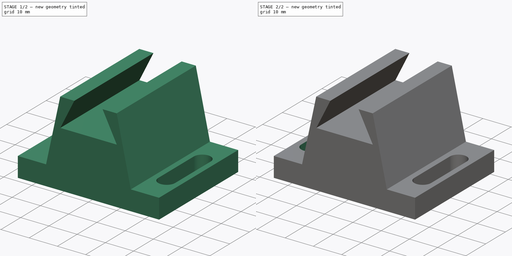
[diagram: build sequence overview — one tinted view per stage of 2, left to right]
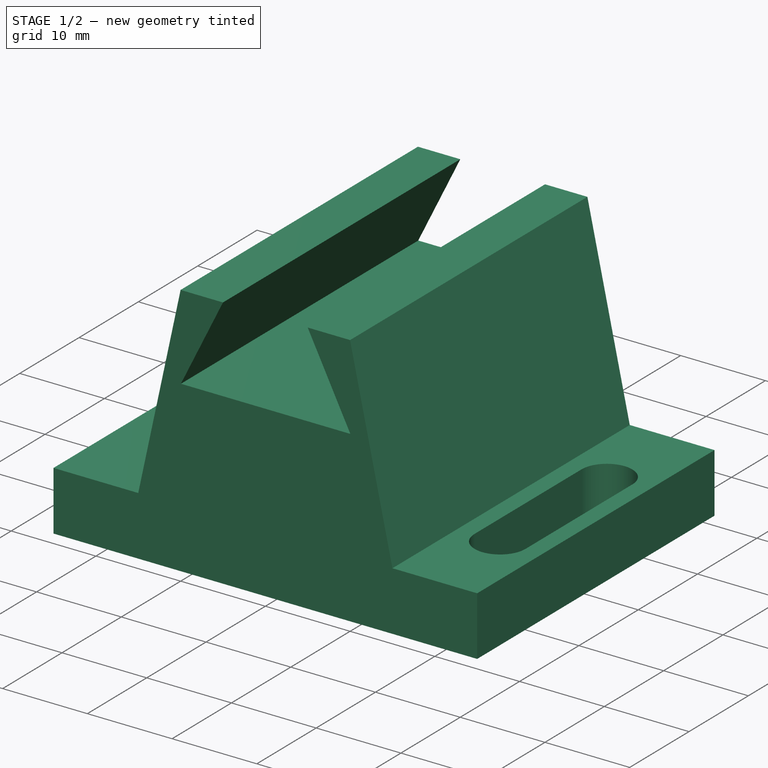
[diagram: stage 1 of 2 — iso view after this stage's code; geometry added in this stage tinted green]
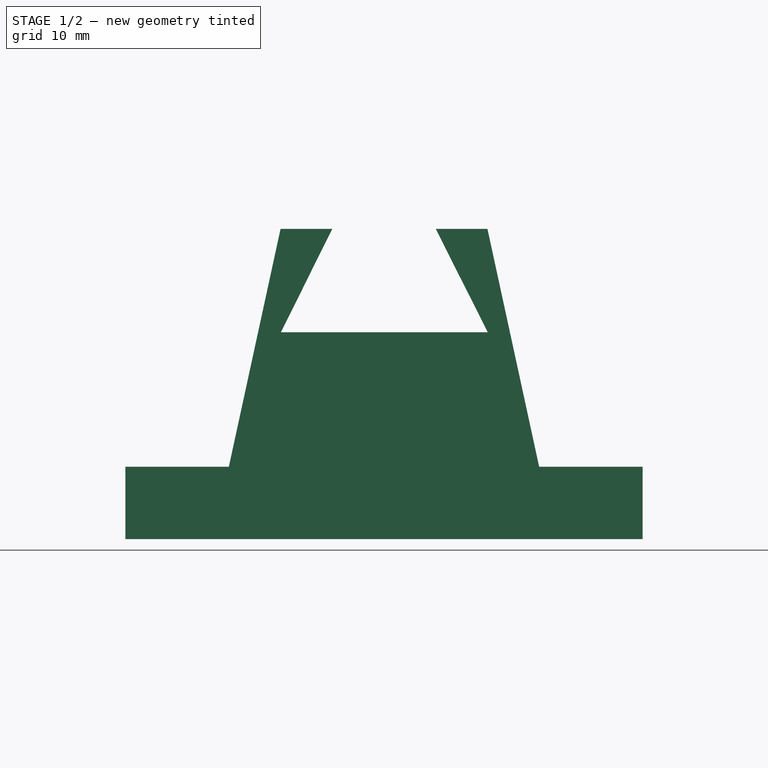
[diagram: stage 1 of 2 — front view after this stage's code; geometry added in this stage tinted green]
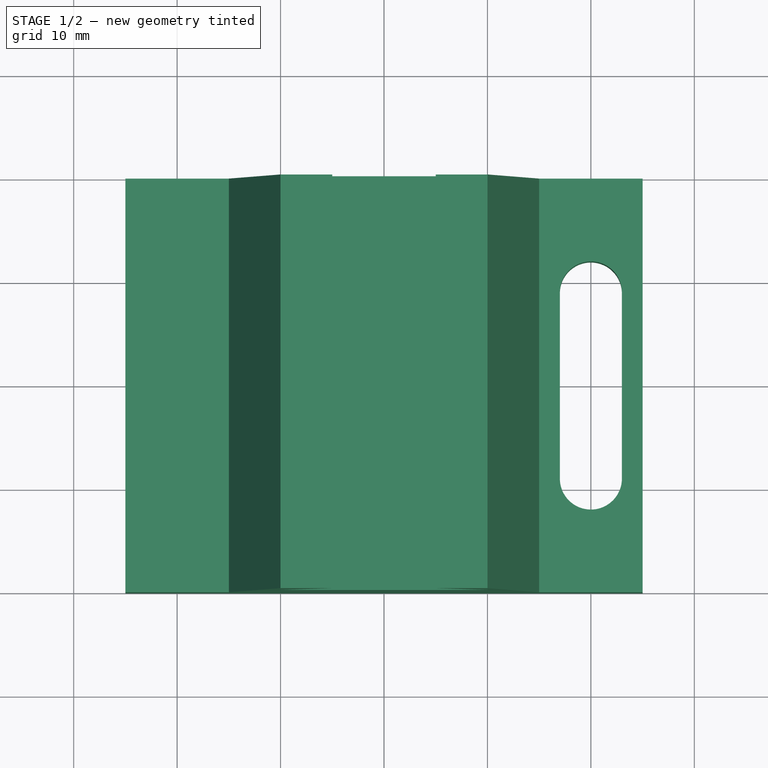
[diagram: stage 1 of 2 — top view after this stage's code; geometry added in this stage tinted green]
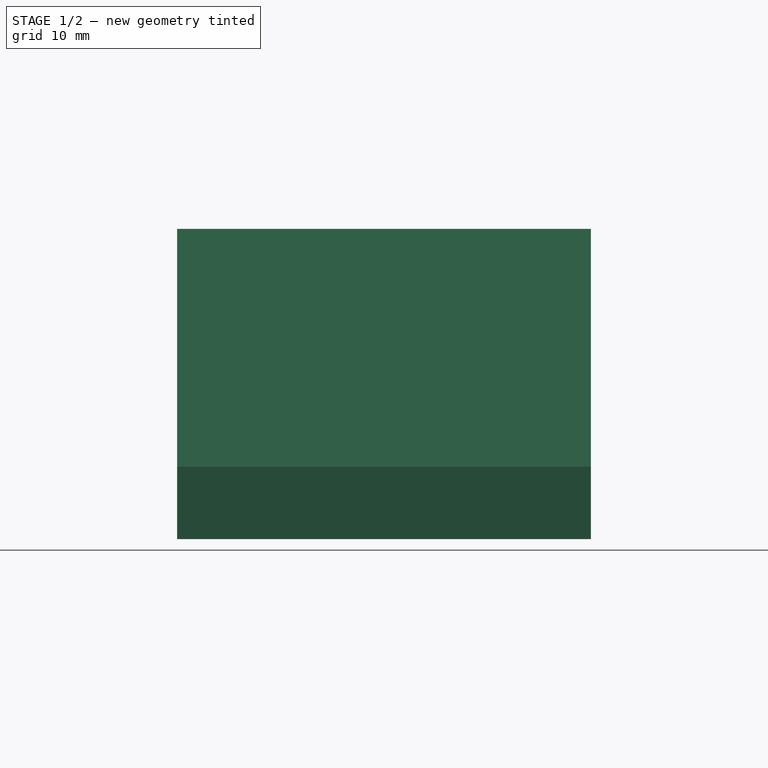
[diagram: stage 1 of 2 — right view after this stage's code; geometry added in this stage tinted green]
FCSTD DOCUMENT  (FreeCAD 0.16R6700 (Git))
Label: ejer3
License: All rights reserved
LicenseURL: http://en.wikipedia.org/wiki/All_rights_reserved
objects: Sketcher::SketchObject×3, PartDesign::Pocket×2, PartDesign::Pad×1
note: 9 computed .brp shape members not serialized (recipe doc carries the construction recipe); baked Part::Feature solids carry a one-line shape summary decoded from their .brp

FEATURE [Sketcher::SketchObject] Sketch
  Placement = pos=(0,0,0) rot=(-1,0,0;4.71239rad)
  sketch-geometry (12):
    g0: LineSegment StartX=-25 StartY=-16.524 StartZ=0 EndX=25 EndY=-16.524 EndZ=0
    g1: LineSegment StartX=-25 StartY=-16.524 StartZ=0 EndX=-25 EndY=-9.52401 EndZ=0
    g2: LineSegment StartX=-25 StartY=-9.52401 StartZ=0 EndX=-15 EndY=-9.52401 EndZ=0
    g3: LineSegment StartX=-15 StartY=-9.52401 StartZ=0 EndX=-10 EndY=13.476 EndZ=0
    g4: LineSegment StartX=-10 StartY=13.476 StartZ=0 EndX=-5 EndY=13.476 EndZ=0
    g5: LineSegment StartX=-5 StartY=13.476 StartZ=0 EndX=-9.96554 EndY=3.47599 EndZ=0
    g6: LineSegment StartX=-9.96554 StartY=3.47599 StartZ=0 EndX=10.0345 EndY=3.47599 EndZ=0
    g7: LineSegment StartX=10.0345 StartY=3.47599 StartZ=0 EndX=5 EndY=13.476 EndZ=0
    g8: LineSegment StartX=5 StartY=13.476 StartZ=0 EndX=10 EndY=13.476 EndZ=0
    g9: LineSegment StartX=10 StartY=13.476 StartZ=0 EndX=15 EndY=-9.52401 EndZ=0
    g10: LineSegment StartX=15 StartY=-9.52401 StartZ=0 EndX=25 EndY=-9.52401 EndZ=0
    g11: LineSegment StartX=25 StartY=-9.52401 StartZ=0 EndX=25 EndY=-16.524 EndZ=0
  constraints (34):
    c: Vertical(g1)
    c: Coincident(g1,g2)
    c: Coincident(g2,g3)
    c: Coincident(g3,g4)
    c: Horizontal(g4)
    c: Coincident(g4,g5)
    c: Coincident(g5,g6)
    c: Horizontal(g6)
    c: Coincident(g6,g7)
    c: Coincident(g7,g8)
    c: Coincident(g8,g9)
    c: Coincident(g9,g10)
    c: Horizontal(g10)
    c: Coincident(g10,g11)
    c: Coincident(g11,g0)
    c: Vertical(g11)
    c: DistanceX(g0,g0) = 50
    c: Symmetric(g0,g0,g-2)
    c: Horizontal(g2)
    c: DistanceY(g11,g11) = 7
    c: DistanceY(g0,g8) = 30
    c: DistanceY(g0,g3) = 30
    c: DistanceY(g1,g1) = 7
    c: Coincident(g0,g1)
    c: DistanceX(g10,g10) = 10
    c: DistanceX(g2,g2) = 10
    c: DistanceX(g6,g6) = 20
    c: DistanceX(g4,g7) = 10
    c: DistanceX(g8,g8) = 5
    c: DistanceX(g4,g4) = 5
    c: DistanceY(g6,g7) = 10
    c: DistanceY(g6,g8) = 10
    c: Symmetric(g4,g7,g-2)
    c: Symmetric(g4,g7,g-2)
FEATURE [PartDesign::Pad] Pad
  Length = 40
  Length2 = 100
  Placement = pos=(0,0,0) rot=(-1,0,0;4.71239rad)
  Sketch = -> Sketch
  Type = 0
FEATURE [Sketcher::SketchObject] Sketch001
  ExternalGeometry = -> [Pad]
  Placement = pos=(0,0,-9.52401) rot=(0,0,1;3.14159rad)
  Support = -> Pad [Face3]
  sketch-geometry (4):
    g0: ArcOfCircle CenterX=-20 CenterY=29 CenterZ=0 NormalX=0 NormalY=0 NormalZ=1 Radius=3 StartAngle=0 EndAngle=3.14159
    g1: ArcOfCircle CenterX=-20 CenterY=11 CenterZ=0 NormalX=0 NormalY=0 NormalZ=1 Radius=3 StartAngle=3.14159 EndAngle=6.28319
    g2: LineSegment StartX=-23 StartY=29 StartZ=0 EndX=-23 EndY=11 EndZ=0
    g3: LineSegment StartX=-17 StartY=29 StartZ=0 EndX=-17 EndY=11 EndZ=0
  constraints (10):
    c: Radius(g0) = 3
    c: Radius(g1) = 3
    c: Vertical(g2)
    c: DistanceX(g-5,g0) = 5
    c: DistanceY(g1,g0) = 18
    c: DistanceY(g-4,g1) = 11
    c: Coincident(g0,g3)
    c: Coincident(g0,g2)
    c: Coincident(g1,g2)
    c: Coincident(g1,g3)
FEATURE [PartDesign::Pocket] Pocket
  Length = 5
  Placement = pos=(0,0,0) rot=(-1,0,0;4.71239rad)
  Sketch = -> Sketch001
  Type = 1
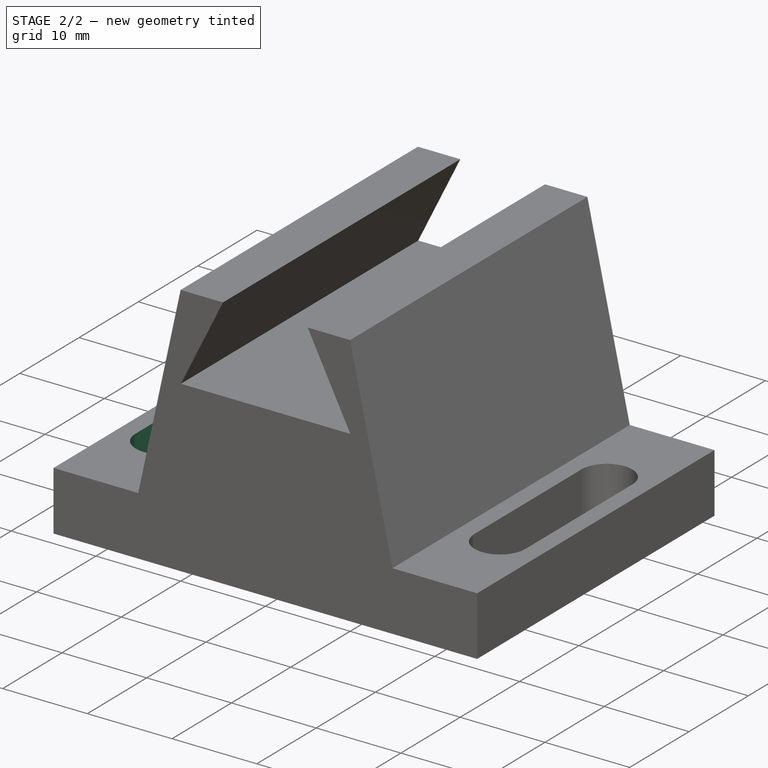
[diagram: stage 2 of 2 — iso view after this stage's code; geometry added in this stage tinted green]
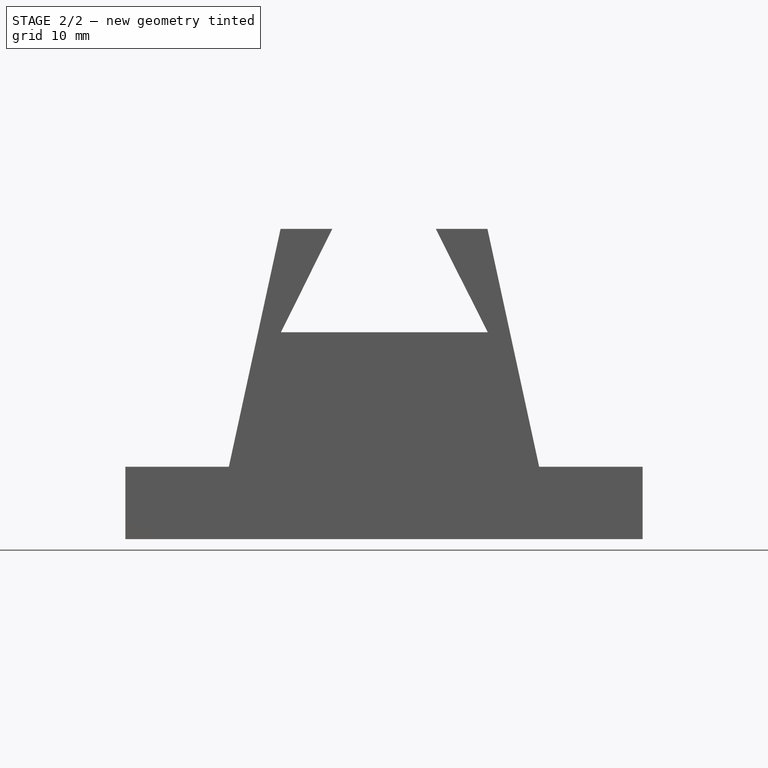
[diagram: stage 2 of 2 — front view after this stage's code; geometry added in this stage tinted green]
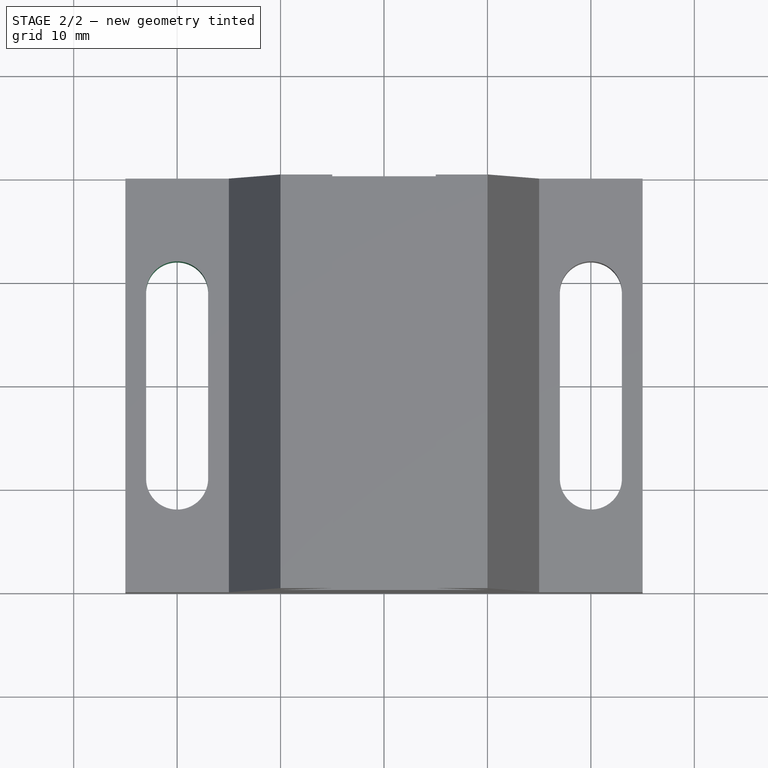
[diagram: stage 2 of 2 — top view after this stage's code; geometry added in this stage tinted green]
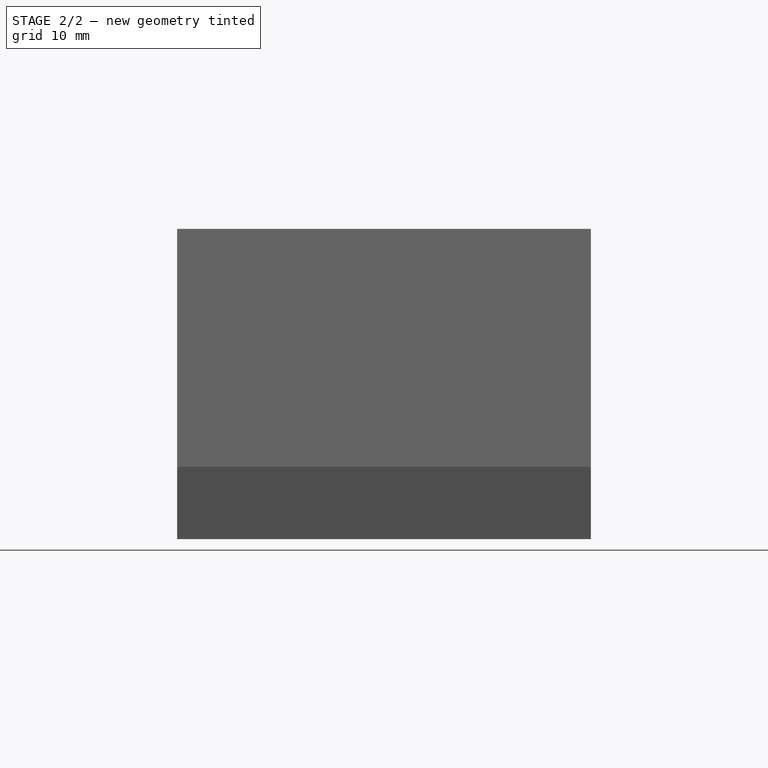
[diagram: stage 2 of 2 — right view after this stage's code; geometry added in this stage tinted green]
FEATURE [Sketcher::SketchObject] Sketch002
  ExternalGeometry = -> [Pocket]
  Placement = pos=(0,0,-9.52401) rot=(0,0,1;3.14159rad)
  Support = -> Pocket [Face10]
  sketch-geometry (4):
    g0: ArcOfCircle CenterX=20 CenterY=29 CenterZ=0 NormalX=0 NormalY=0 NormalZ=1 Radius=3 StartAngle=0 EndAngle=3.14159
    g1: ArcOfCircle CenterX=20 CenterY=11 CenterZ=0 NormalX=0 NormalY=0 NormalZ=1 Radius=3 StartAngle=3.14159 EndAngle=6.28319
    g2: LineSegment StartX=17 StartY=11 StartZ=0 EndX=17 EndY=29 EndZ=0
    g3: LineSegment StartX=23 StartY=29 StartZ=0 EndX=23 EndY=11 EndZ=0
  constraints (10):
    c: Radius(g0) = 3
    c: Radius(g1) = 3
    c: DistanceY(g-3,g1) = 11
    c: DistanceY(g0,g-4) = 11
    c: DistanceX(g0,g-4) = 5
    c: DistanceX(g1,g-3) = 5
    c: Coincident(g1,g2)
    c: Coincident(g1,g3)
    c: Coincident(g0,g3)
    c: Coincident(g0,g2)
FEATURE [PartDesign::Pocket] Pocket001
  Length = 5
  Placement = pos=(0,0,0) rot=(-1,0,0;4.71239rad)
  Sketch = -> Sketch002
  Type = 1
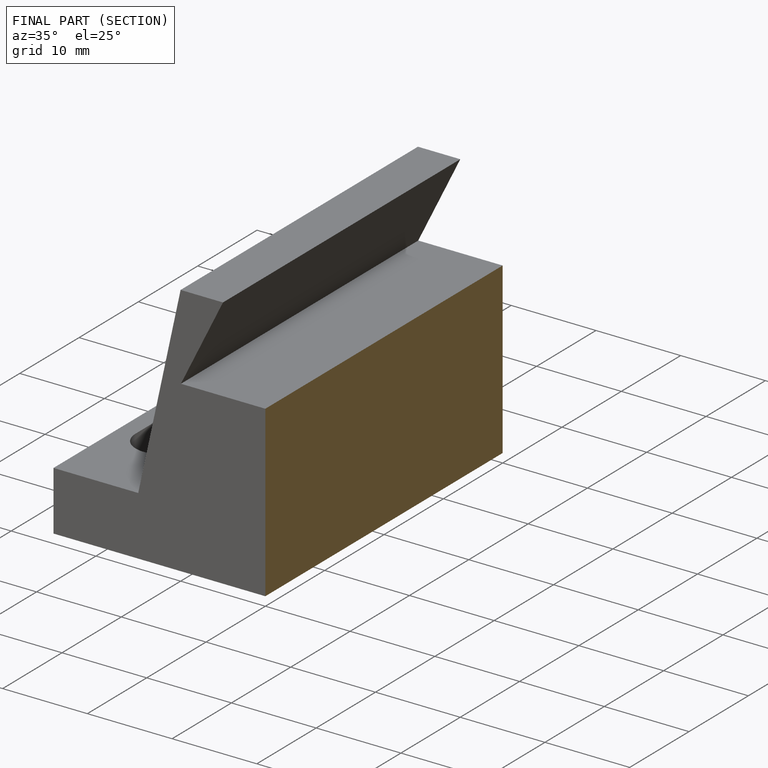
[diagram: finished part — half-section view (interior)]
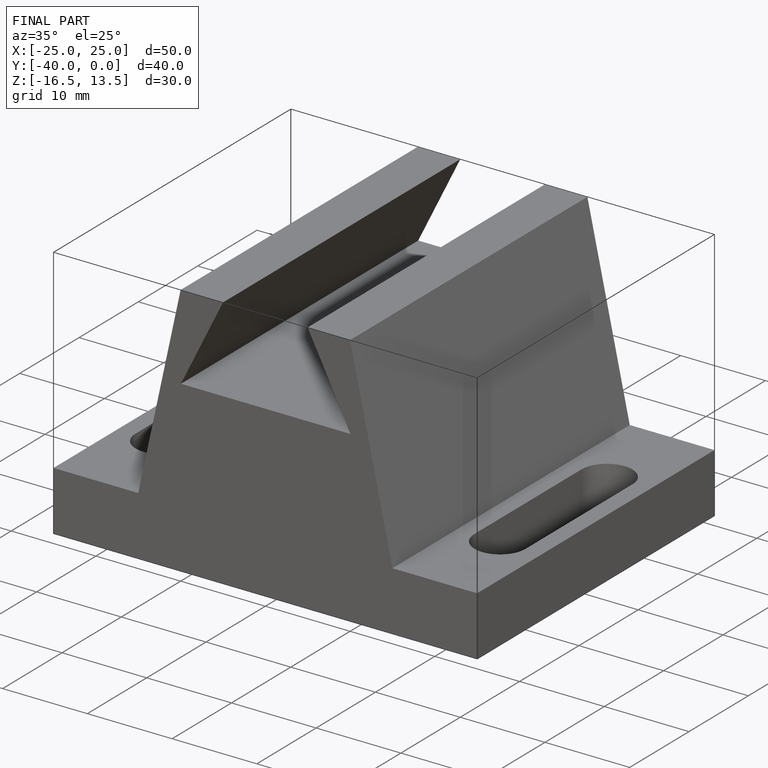
[diagram: finished part — iso view with bounding-box wireframe]
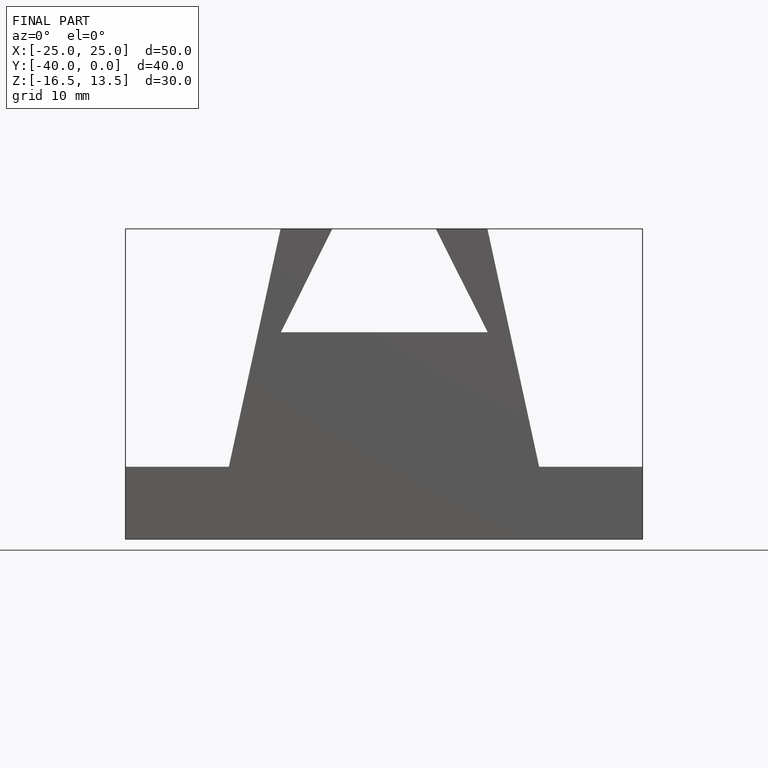
[diagram: finished part — front view with bounding-box wireframe]
